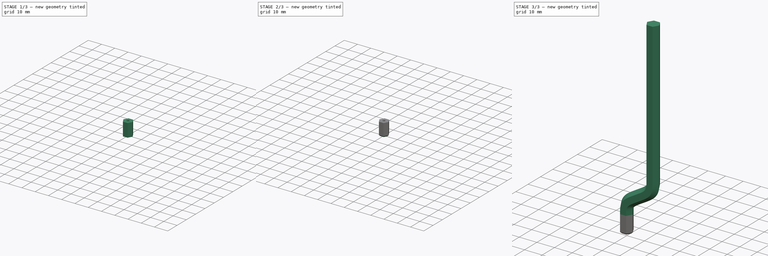
[diagram: build sequence overview — one tinted view per stage of 3, left to right]
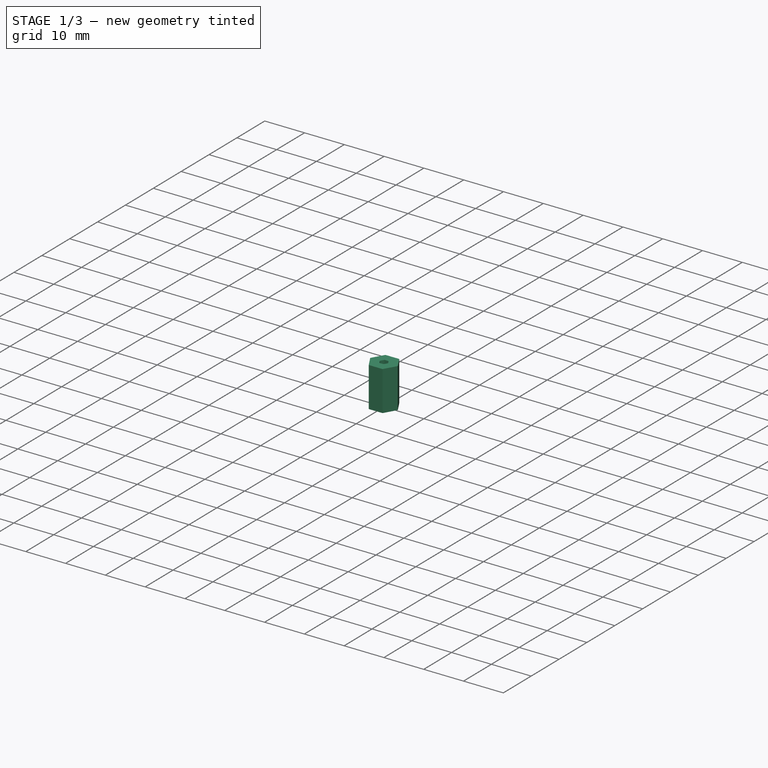
[diagram: stage 1 of 3 — iso view after this stage's code; geometry added in this stage tinted green]
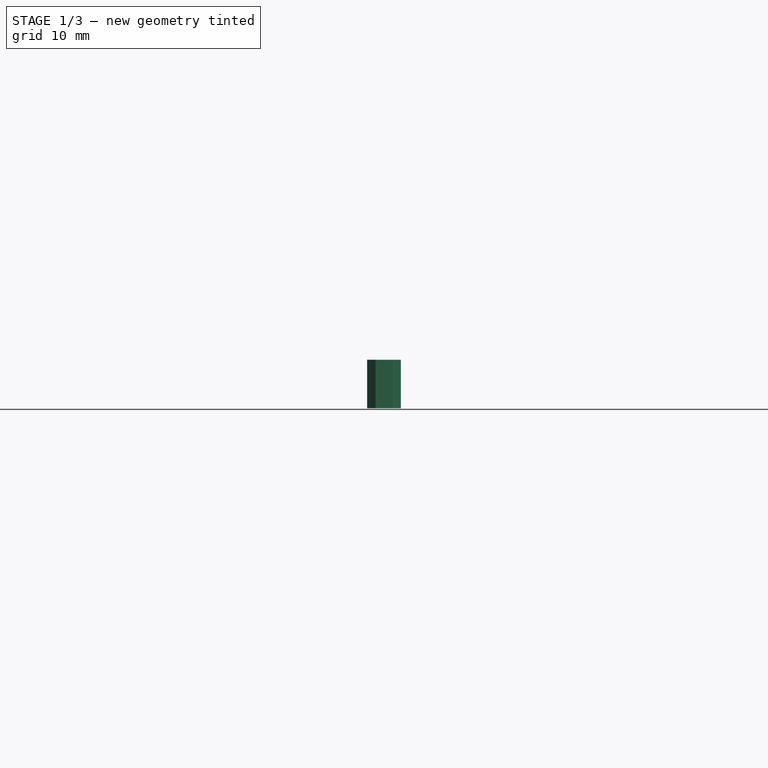
[diagram: stage 1 of 3 — front view after this stage's code; geometry added in this stage tinted green]
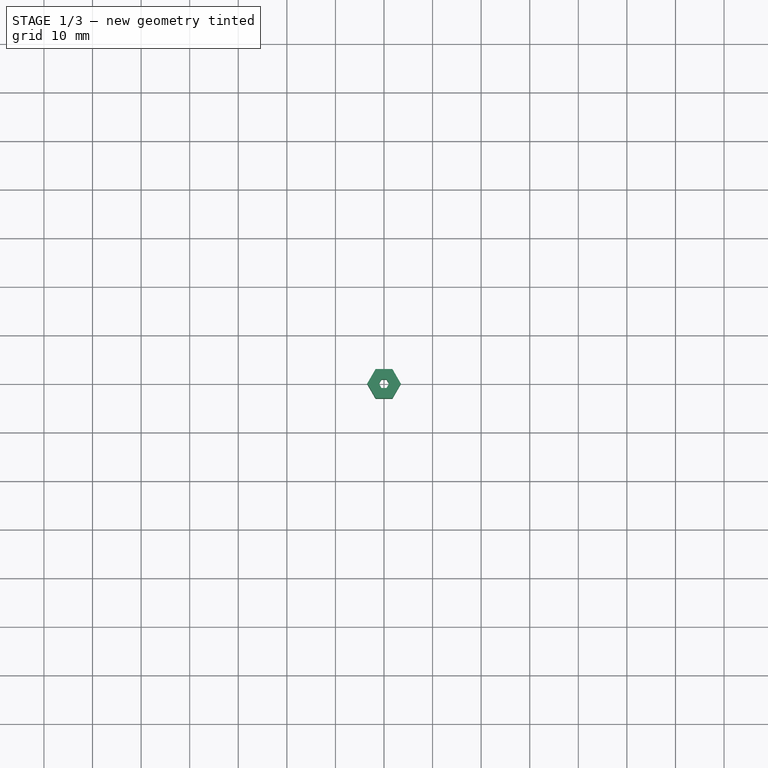
[diagram: stage 1 of 3 — top view after this stage's code; geometry added in this stage tinted green]
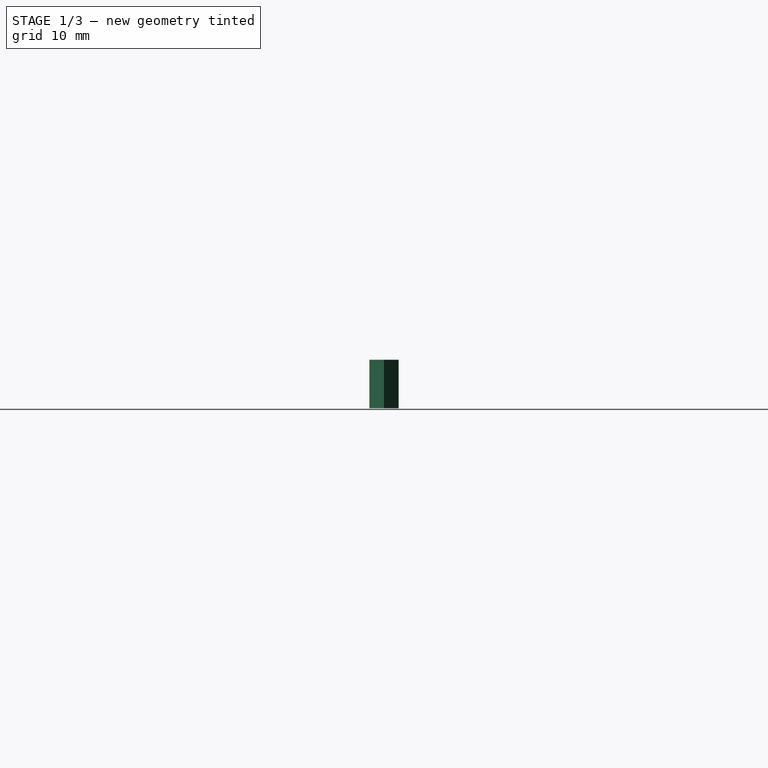
[diagram: stage 1 of 3 — right view after this stage's code; geometry added in this stage tinted green]
FCSTD DOCUMENT  (FreeCAD 0.18.4R)
Label: HexKeyExtender
License: All rights reserved
LicenseURL: http://en.wikipedia.org/wiki/All_rights_reserved
objects: Sketcher::SketchObject×4, PartDesign::Pad×2, PartDesign::Chamfer×2, PartDesign::AdditivePipe×1, PartDesign::Body×1, App::Part×1
note: 13 computed .brp shape members not serialized (recipe doc carries the construction recipe); baked Part::Feature solids carry a one-line shape summary decoded from their .brp

FEATURE [Sketcher::SketchObject] Sketch
  MapMode = 5
  Support = -> [XY_Plane001]
  sketch-geometry (14):
    g0: LineSegment StartX=3.4641 StartY=0 StartZ=0 EndX=1.73205 EndY=3 EndZ=0
    g1: LineSegment StartX=1.73205 StartY=3 StartZ=0 EndX=-1.73205 EndY=3 EndZ=0
    g2: LineSegment StartX=-1.73205 StartY=3 StartZ=0 EndX=-3.4641 EndY=0 EndZ=0
    g3: LineSegment StartX=-3.4641 StartY=0 StartZ=0 EndX=-1.73205 EndY=-3 EndZ=0
    g4: LineSegment StartX=-1.73205 StartY=-3 StartZ=0 EndX=1.73205 EndY=-3 EndZ=0
    g5: LineSegment StartX=1.73205 StartY=-3 StartZ=0 EndX=3.4641 EndY=0 EndZ=0
    g6: Circle [constr] CenterX=0 CenterY=0 CenterZ=0 NormalX=0 NormalY=0 NormalZ=1 AngleXU=0 Radius=3.4641
    g7: LineSegment StartX=-0.519615 StartY=-0.9 StartZ=0 EndX=0.519615 EndY=-0.9 EndZ=0
    g8: LineSegment StartX=0.519615 StartY=-0.9 StartZ=0 EndX=1.03923 EndY=1e-16 EndZ=0
    g9: LineSegment StartX=1.03923 StartY=1e-16 StartZ=0 EndX=0.519615 EndY=0.9 EndZ=0
    g10: LineSegment StartX=0.519615 StartY=0.9 StartZ=0 EndX=-0.519615 EndY=0.9 EndZ=0
    g11: LineSegment StartX=-0.519615 StartY=0.9 StartZ=0 EndX=-1.03923 EndY=0 EndZ=0
    g12: LineSegment StartX=-1.03923 StartY=0 StartZ=0 EndX=-0.519615 EndY=-0.9 EndZ=0
    g13: Circle [constr] CenterX=0 CenterY=0 CenterZ=0 NormalX=0 NormalY=0 NormalZ=1 AngleXU=0 Radius=1.03923
  constraints (32):
    c: Coincident(g0,g1)
    c: Coincident(g1,g2)
    c: Coincident(g2,g3)
    c: Coincident(g3,g4)
    c: Coincident(g4,g5)
    c: Coincident(g5,g0)
    c: Equal(g0, g1-g5) x5
    c: PointOnObject(g0,g6)
    c: PointOnObject(g1,g6)
    c: PointOnObject(g2,g6)
    c: PointOnObject(g3,g6)
    c: PointOnObject(g4,g6)
    c: PointOnObject(g5,g6)
    c: Coincident(g6,g-1)
    c: Horizontal(g1)
    c: DistanceY(g4,g0) = 6  'OuterWidth'
    c: Coincident(g7,g8)
    c: Coincident(g8,g9)
    c: Coincident(g9,g10)
    c: Coincident(g10,g11)
    c: Coincident(g11,g12)
    c: Coincident(g12,g7)
    c: Equal(g7, g8-g12) x5
    c: PointOnObject(g7,g13)
    c: PointOnObject(g8,g13)
    c: PointOnObject(g9,g13)
    c: PointOnObject(g10,g13)
    c: PointOnObject(g11,g13)
    c: PointOnObject(g12,g13)
    c: Coincident(g13,g-1)
    c: Horizontal(g7)
    c: DistanceY(g7,g9) = 1.8  'InnerWidth'
FEATURE [PartDesign::Pad] Pad
  Length = 10
  Length2 = 100
  Profile = -> Sketch
  Type = 0
FEATURE [Sketcher::SketchObject] Sketch001
  AttachmentOffset = pos=(0,0,10) rot=(0,0,1;0rad)
  ExternalGeometry = -> [Sketch]
  MapMode = 5
  Placement = pos=(0,0,10) rot=(0,0,1;0rad)
  Support = -> [XY_Plane001]
  expr: AttachmentOffset.Base.z = Sketch.Placement.Base.z + Pad.Length
  sketch-geometry (7):
    g0: LineSegment StartX=3.4641 StartY=-1e-16 StartZ=0 EndX=1.73205 EndY=3 EndZ=0
    g1: LineSegment StartX=1.73205 StartY=3 StartZ=0 EndX=-1.73205 EndY=3 EndZ=0
    g2: LineSegment StartX=-1.73205 StartY=3 StartZ=0 EndX=-3.4641 EndY=-4e-16 EndZ=0
    g3: LineSegment StartX=-3.4641 StartY=-4e-16 StartZ=0 EndX=-1.73205 EndY=-3 EndZ=0
    g4: LineSegment StartX=-1.73205 StartY=-3 StartZ=0 EndX=1.73205 EndY=-3 EndZ=0
    g5: LineSegment StartX=1.73205 StartY=-3 StartZ=0 EndX=3.4641 EndY=0 EndZ=0
    g6: Circle [constr] CenterX=0 CenterY=0 CenterZ=0 NormalX=0 NormalY=0 NormalZ=1 AngleXU=0 Radius=3.4641
  constraints (15):
    c: Coincident(g0,g1)
    c: Coincident(g1,g2)
    c: Coincident(g2,g3)
    c: Coincident(g3,g4)
    c: Coincident(g4,g5)
    c: Coincident(g5,g0)
    c: Equal(g0, g1-g5) x5
    c: PointOnObject(g0,g6)
    c: PointOnObject(g1,g6)
    c: PointOnObject(g2,g6)
    c: PointOnObject(g3,g6)
    c: PointOnObject(g4,g6)
    c: PointOnObject(g5,g6)
    c: Coincident(g6,g-1)
    c: Coincident(g0,g-3)
FEATURE [Sketcher::SketchObject] Sketch002
  ExternalGeometry = -> [Sketch001]
  MapMode = 5
  Placement = pos=(0,0,0) rot=(1,0,0;1.5708rad)
  Support = -> [XZ_Plane001]
  sketch-geometry (16):
    g0-g5: Circle [constr] x6 (B-spline internal-alignment scaffolding for g6; pole/knot coordinates omitted)
    g6: BSplineCurve PolesCount=6 KnotsCount=4 Degree=3 IsPeriodic=0
    g7-g10: GeomPoint [constr] x4 (B-spline internal-alignment scaffolding for g6; pole/knot coordinates omitted)
    g11: LineSegment [constr] StartX=15 StartY=31 StartZ=0 EndX=15 EndY=27.5 EndZ=0
    g12: LineSegment [constr] StartX=15 StartY=27.5 StartZ=0 EndX=15 EndY=24 EndZ=0
    g13: LineSegment [constr] StartX=0 StartY=10 StartZ=0 EndX=0 EndY=13.5 EndZ=0
    g14: LineSegment [constr] StartX=0 StartY=13.5 StartZ=0 EndX=0 EndY=17 EndZ=0
    g15: LineSegment StartX=15 StartY=31 StartZ=0 EndX=15 EndY=111 EndZ=0
  constraints (28):
    c: PointOnObject(g6,g-3)
    c: Radius(g0) = 1
    c: Equal(g0,g1)
    c: PointOnObject(g1,g-2)
    c: Equal(g0, g2-g5) x4
    c: InternalAlignment(g0-g5 -> g6) x6
    c: InternalAlignment(g7-g10 -> g6) x4
    c: Coincident(g11,g6)
    c: Coincident(g11,g4)
    c: Vertical(g11)
    c: Coincident(g12,g4)
    c: Coincident(g12,g3)
    c: Vertical(g12)
    c: Coincident(g13,g6)
    c: Coincident(g13,g1)
    c: Vertical(g13)
    c: Coincident(g14,g1)
    c: Coincident(g14,g2)
    c: Vertical(g14)
    c: Equal(g13,g14)
    c: Equal(g14,g12)
    c: Equal(g12,g11)
    c: Coincident(g15,g6)
    c: Vertical(g15)
    c: DistanceY(g6,g2) = 7
    c: DistanceY(g2,g3) = 7
    c: DistanceX(g6,g3) = 15
    c: DistanceY(g15,g15) = 80
FEATURE [PartDesign::Chamfer] Chamfer001
  Base = -> Pad [Edge33,Edge35,Edge21,Edge24,Edge27,Edge30]
  BaseFeature = -> Pad
  Size = 0.82
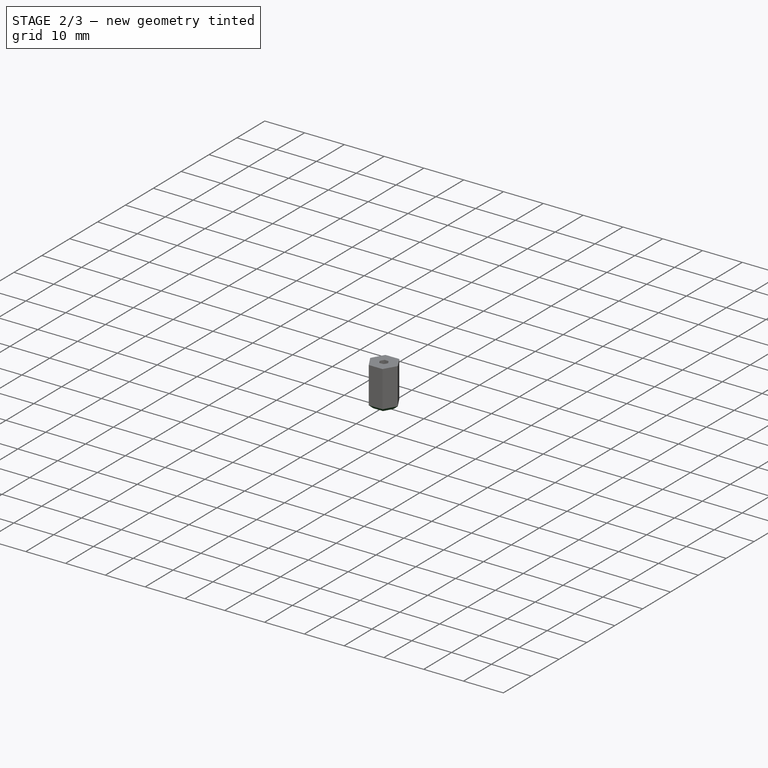
[diagram: stage 2 of 3 — iso view after this stage's code; geometry added in this stage tinted green]
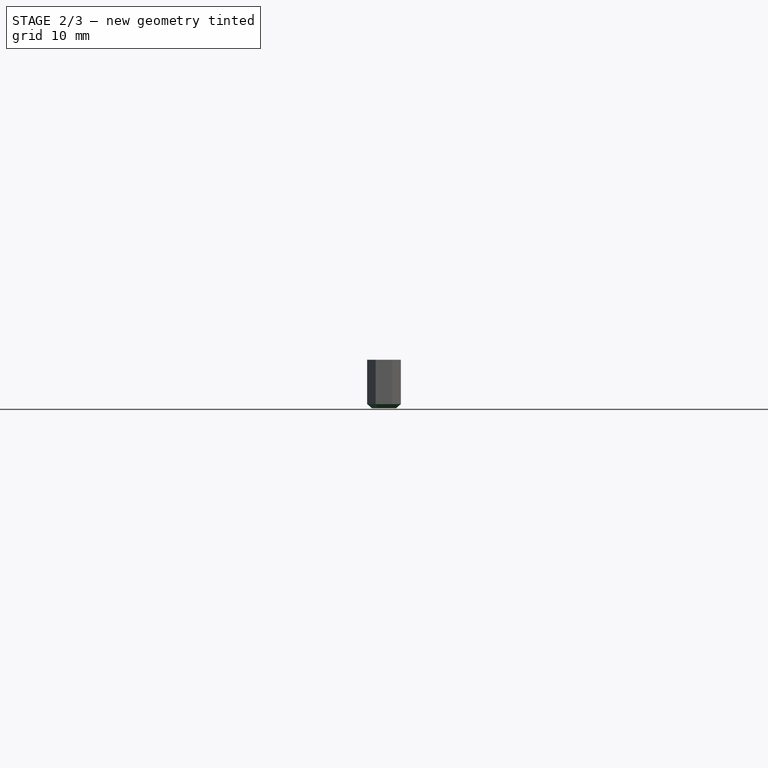
[diagram: stage 2 of 3 — front view after this stage's code; geometry added in this stage tinted green]
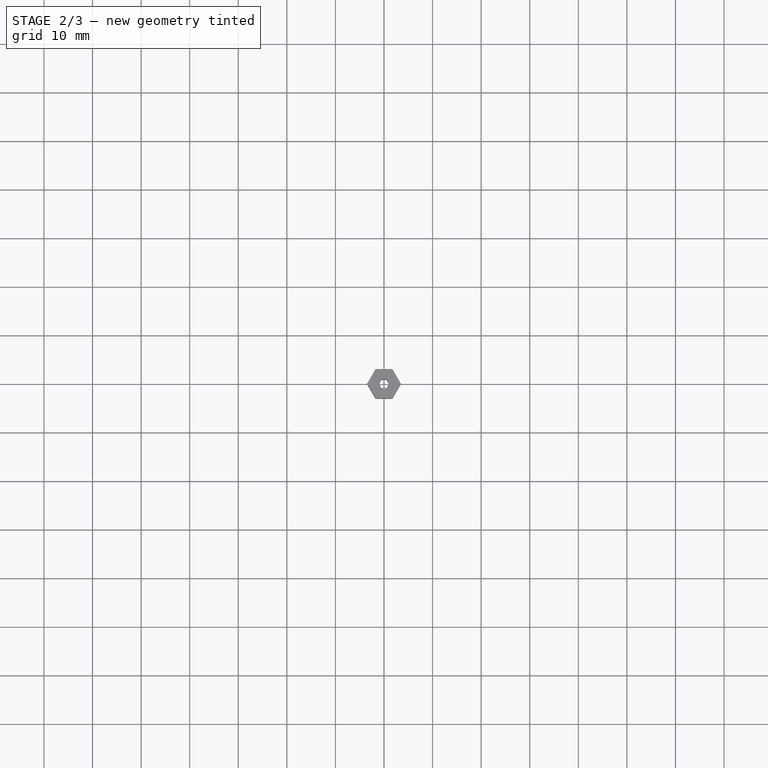
[diagram: stage 2 of 3 — top view after this stage's code; geometry added in this stage tinted green]
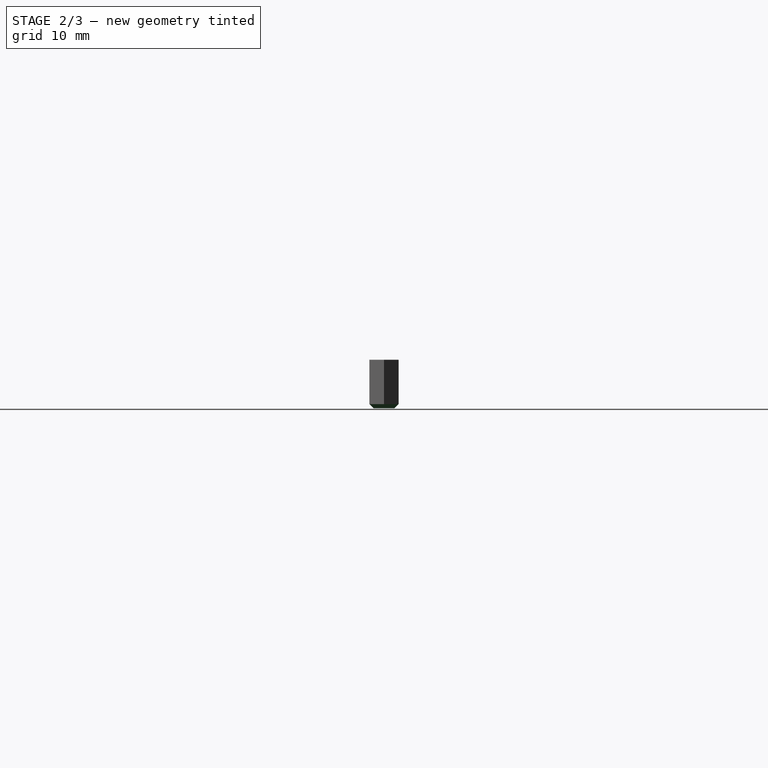
[diagram: stage 2 of 3 — right view after this stage's code; geometry added in this stage tinted green]
FEATURE [PartDesign::Chamfer] Chamfer
  Base = -> Chamfer001 [Edge35,Edge34,Edge33,Edge32,Edge31,Edge36]
  BaseFeature = -> Chamfer001
  Size = 0.87
  expr: Size = (Sketch.Constraints.OuterWidth - Sketch.Constraints.InnerWidth) / 2 - Chamfer001.Size - 0.41mm
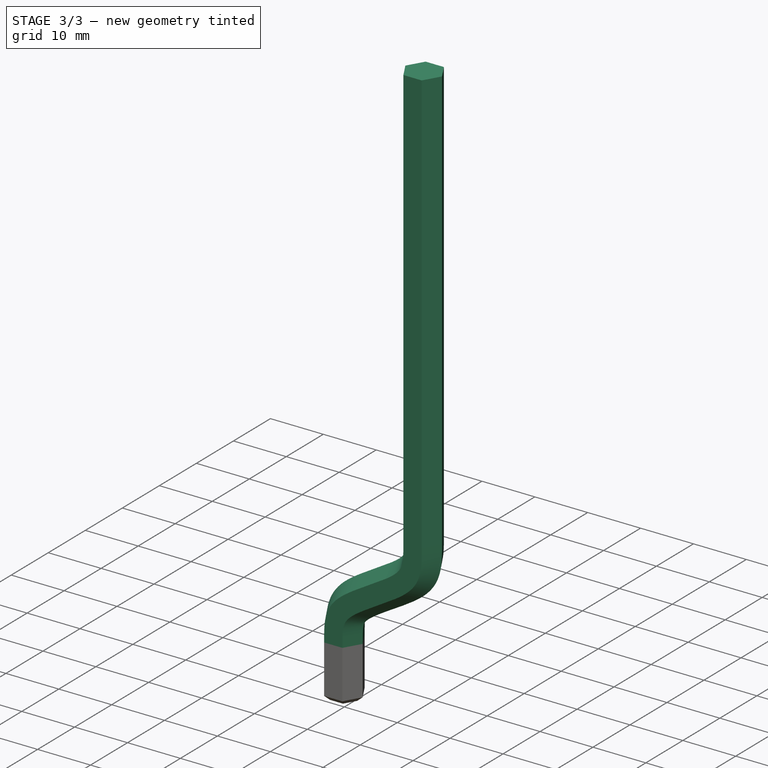
[diagram: stage 3 of 3 — iso view after this stage's code; geometry added in this stage tinted green]
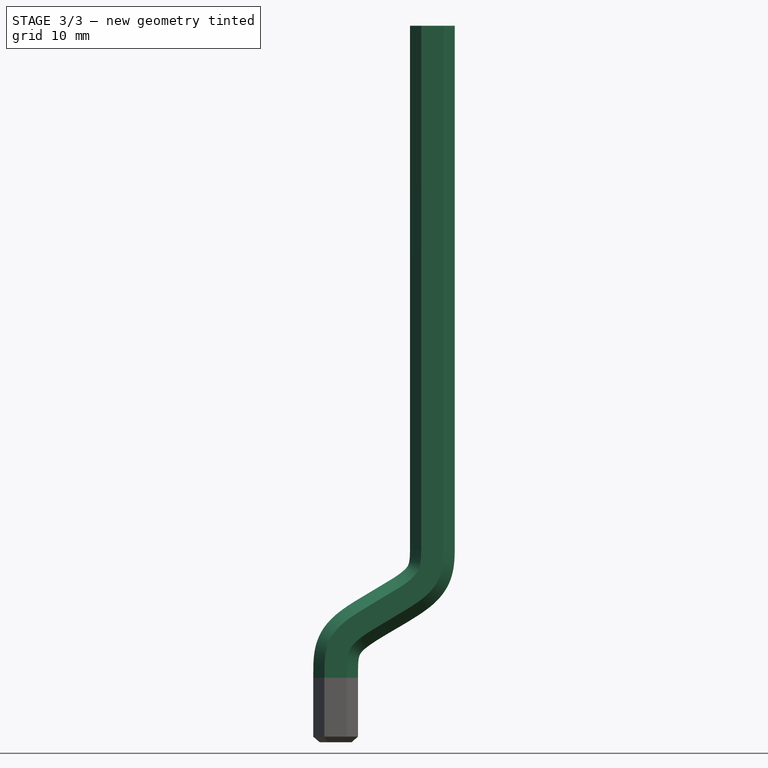
[diagram: stage 3 of 3 — front view after this stage's code; geometry added in this stage tinted green]
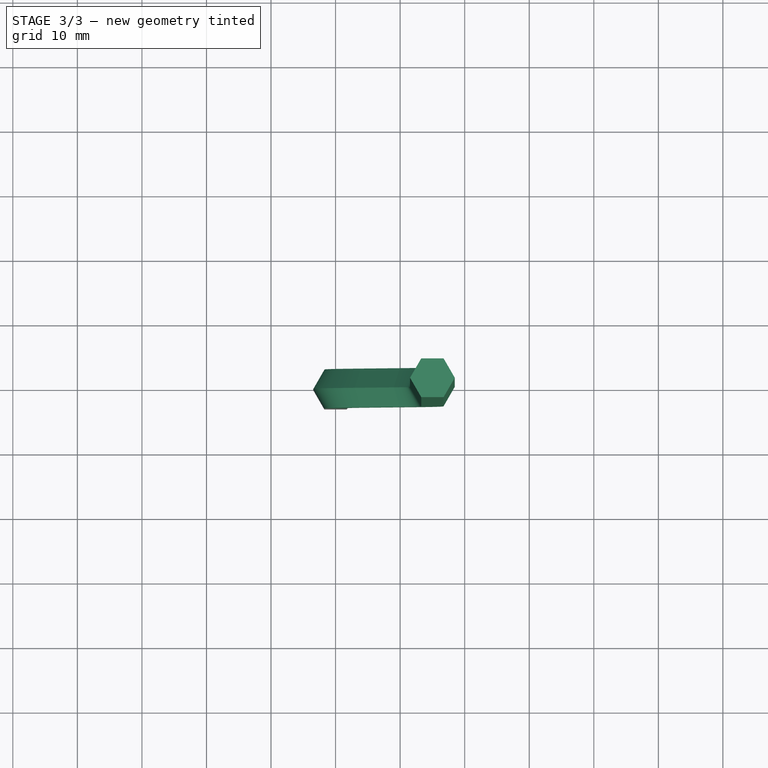
[diagram: stage 3 of 3 — top view after this stage's code; geometry added in this stage tinted green]
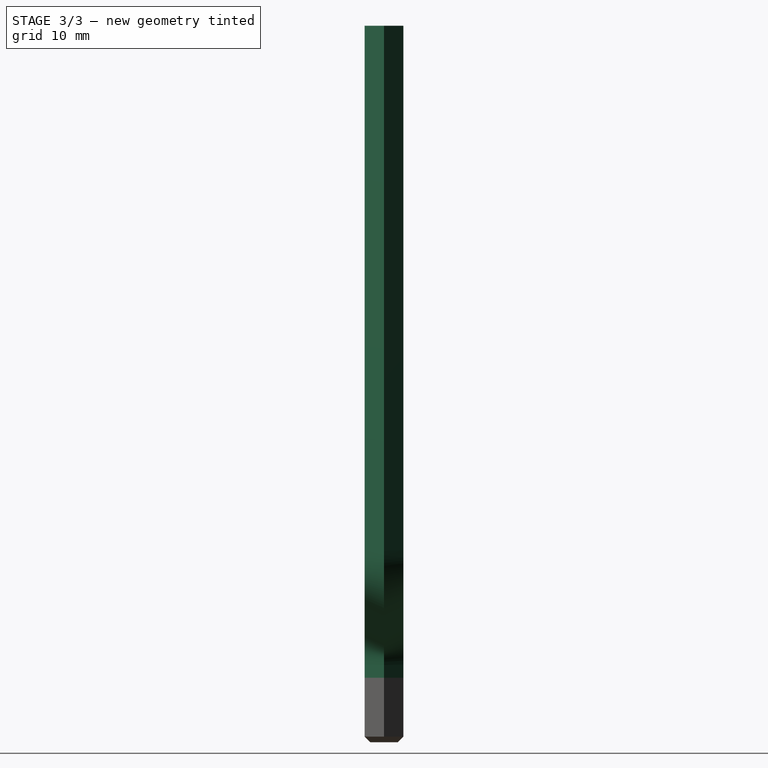
[diagram: stage 3 of 3 — right view after this stage's code; geometry added in this stage tinted green]
FEATURE [Sketcher::SketchObject] Sketch003
  ExternalGeometry = -> [Sketch]
  MapMode = 5
  Placement = pos=(0,0,0) rot=(0.57735,0.57735,0.57735;2.0944rad)
  Support = -> [YZ_Plane001]
  expr: Constraints[7] = Constraints.Length / 4
  expr: Constraints.Length = Sketch.Constraints.InnerWidth / 2
  sketch-geometry (6):
    g0: LineSegment StartX=-0.9 StartY=2 StartZ=0 EndX=-0.675 EndY=2.45 EndZ=0
    g1: LineSegment StartX=-0.675 StartY=2.45 StartZ=0 EndX=-0.9 EndY=2.9 EndZ=0
    g2: LineSegment StartX=-0.9 StartY=2.9 StartZ=0 EndX=-0.9 EndY=2 EndZ=0
    g3: LineSegment StartX=-0.9 StartY=8 StartZ=0 EndX=-0.9 EndY=8.9 EndZ=0
    g4: LineSegment StartX=-0.9 StartY=8.9 StartZ=0 EndX=-0.675 EndY=8.45 EndZ=0
    g5: LineSegment StartX=-0.675 StartY=8.45 StartZ=0 EndX=-0.9 EndY=8 EndZ=0
  constraints (18):
    c: Coincident(g0,g1)
    c: Coincident(g1,g2)
    c: Coincident(g2,g0)
    c: Vertical(g2)
    c: PointOnObject(g-3,g2)
    c: Equal(g0,g1)
    c: DistanceY(g2,g2) = 0.9  'Length'
    c: DistanceX(g1,g0) = 0.225
    c: DistanceY(g-3,g0) = 2
    c: Vertical(g3)
    c: Coincident(g3,g4)
    c: Coincident(g4,g5)
    c: Coincident(g5,g3)
    c: Equal(g5,g4)
    c: Equal(g4,g1)
    c: Equal(g2,g3)
    c: PointOnObject(g3,g2)
    c: DistanceY(g0,g4) = 6
FEATURE [PartDesign::Pad] Pad001
  BaseFeature = -> Chamfer
  Length = 1.8
  Length2 = 100
  Midplane = true
  Profile = -> Sketch003
  Type = 0
  expr: Length = Sketch.Constraints.InnerWidth
FEATURE [PartDesign::AdditivePipe] AdditivePipe
  AuxilleryCurvelinear = true
  AuxillerySpineTangent = false
  BaseFeature = -> Pad001
  Binormal = (0,0,0)
  Mode = 0
  Profile = -> Sketch001
  Spine = -> Sketch002
  SpineTangent = false
  Transformation = 0
  Transition = 0
FEATURE [PartDesign::Body] Body
  Group = -> [Sketch,Pad,Chamfer001,Chamfer,Sketch001,Sketch002,Sketch003,Pad001,AdditivePipe]
  Origin = -> Origin001
  Tip = -> AdditivePipe
FEATURE [App::Part] Part
  Group = -> [Body]
  Origin = -> Origin
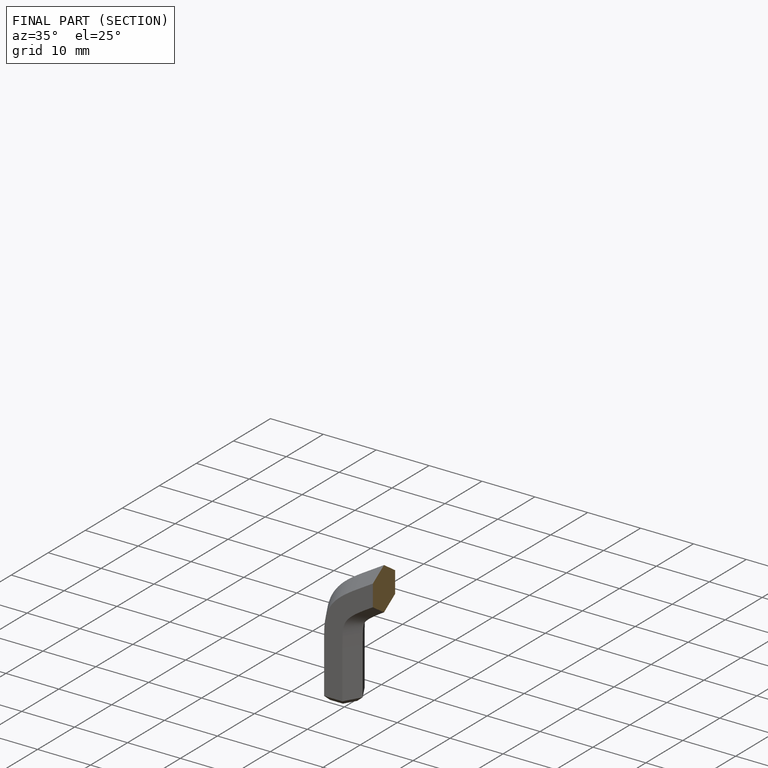
[diagram: finished part — half-section view (interior)]
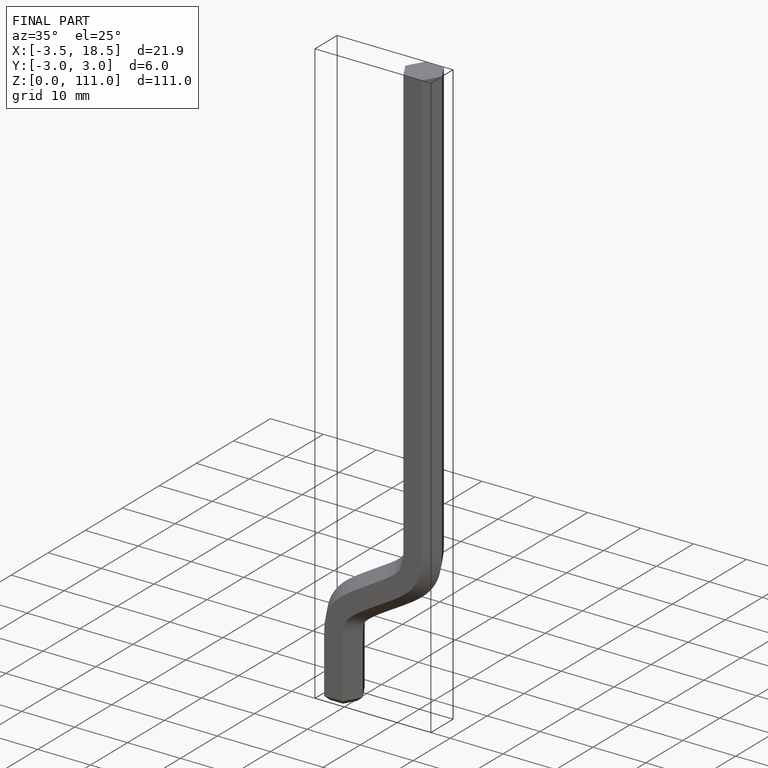
[diagram: finished part — iso view with bounding-box wireframe]
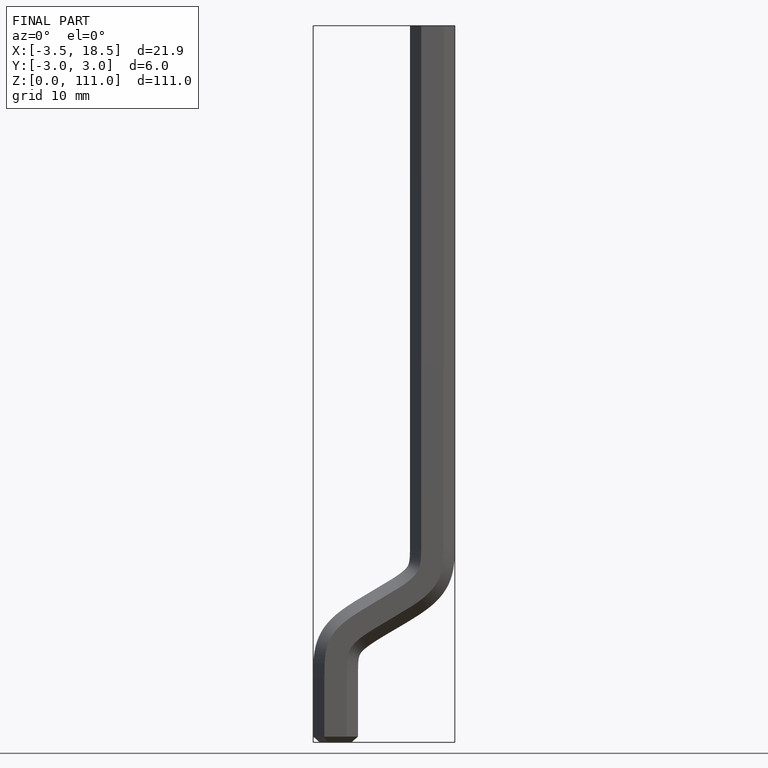
[diagram: finished part — front view with bounding-box wireframe]
